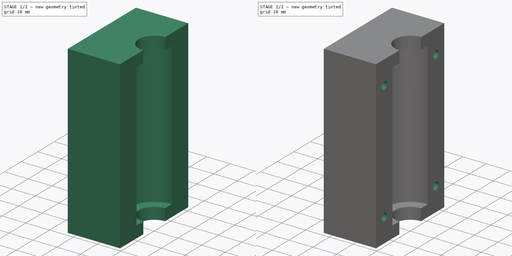
[diagram: build sequence overview — one tinted view per stage of 2, left to right]
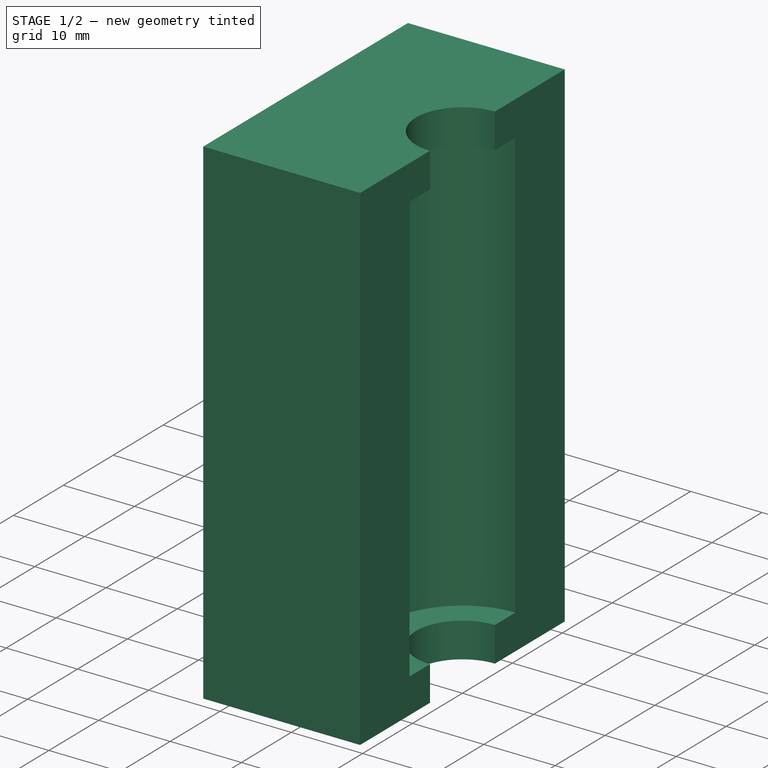
[diagram: stage 1 of 2 — iso view after this stage's code; geometry added in this stage tinted green]
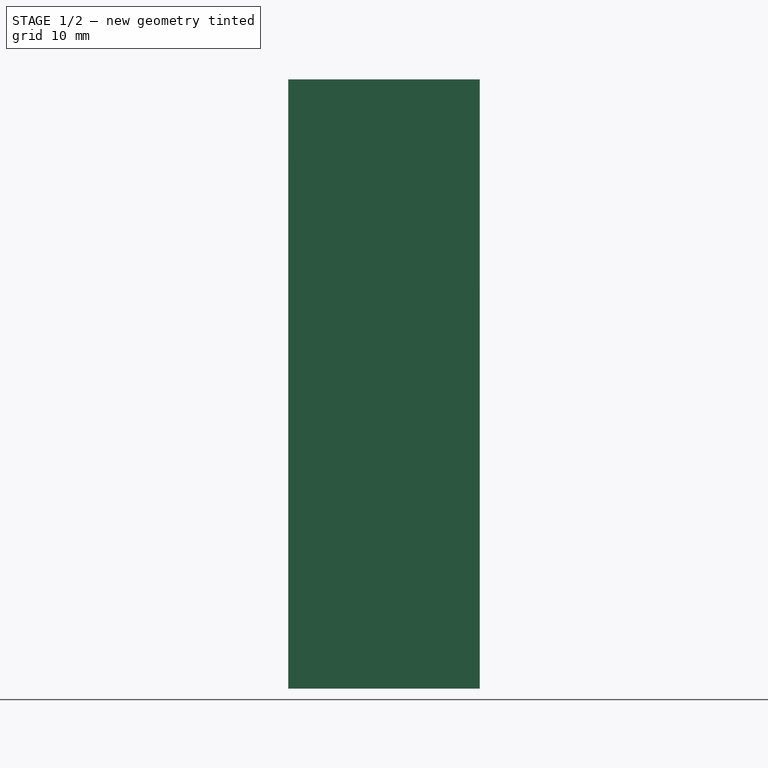
[diagram: stage 1 of 2 — front view after this stage's code; geometry added in this stage tinted green]
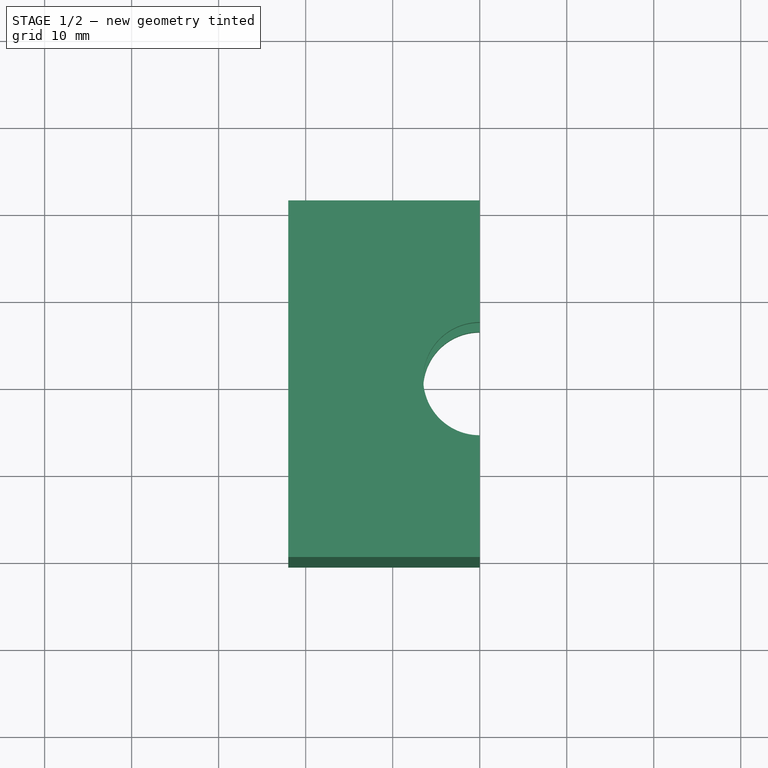
[diagram: stage 1 of 2 — top view after this stage's code; geometry added in this stage tinted green]
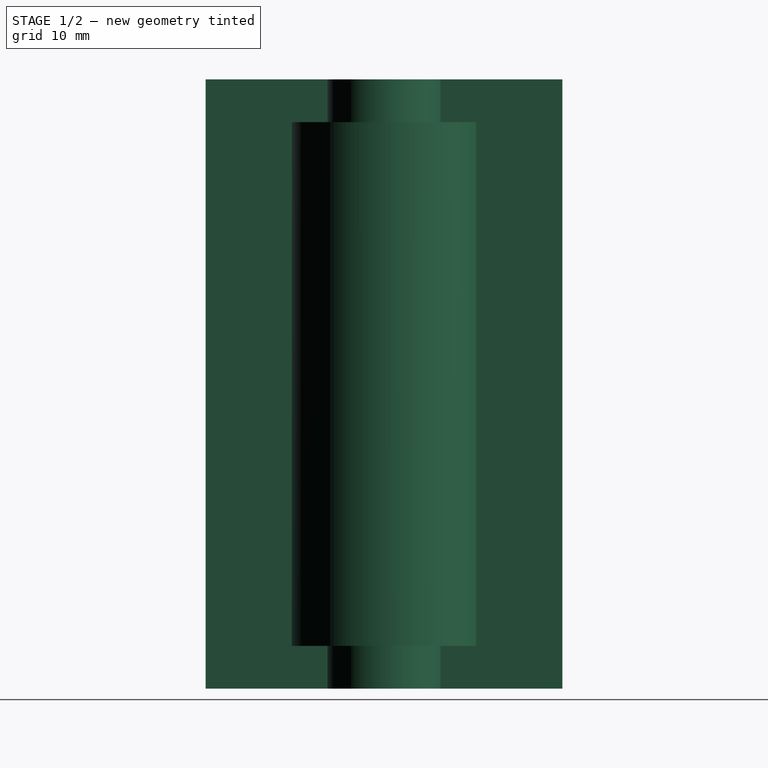
[diagram: stage 1 of 2 — right view after this stage's code; geometry added in this stage tinted green]
FCSTD DOCUMENT  (FreeCAD 0.19R20209 (Git))
Label: Z-Axel-Bearing_030
License: Creative Commons Attribution
LicenseURL: http://creativecommons.org/licenses/by/4.0/
objects: Sketcher::SketchObject×4, PartDesign::Pocket×3, PartDesign::Pad×1, PartDesign::Body×1
note: 13 computed .brp shape members not serialized (recipe doc carries the construction recipe); baked Part::Feature solids carry a one-line shape summary decoded from their .brp

FEATURE [Sketcher::SketchObject] Sketch
  MapMode = 5
  Support = -> [XY_Plane]
  expr: Constraints[12] = 21 / 2 + 10
  sketch-geometry (6):
    g0: ArcOfCircle CenterX=0 CenterY=0 CenterZ=0 NormalX=0 NormalY=0 NormalZ=1 AngleXU=0 Radius=6.5 StartAngle=1.5708 EndAngle=4.71239
    g1: LineSegment StartX=-22 StartY=20.5 StartZ=0 EndX=-22 EndY=-20.5 EndZ=0
    g2: LineSegment StartX=-22 StartY=20.5 StartZ=0 EndX=0 EndY=20.5 EndZ=0
    g3: LineSegment StartX=0 StartY=20.5 StartZ=0 EndX=0 EndY=6.5 EndZ=0
    g4: LineSegment StartX=0 StartY=-20.5 StartZ=0 EndX=-22 EndY=-20.5 EndZ=0
    g5: LineSegment StartX=-1.2e-15 StartY=-6.5 StartZ=0 EndX=0 EndY=-20.5 EndZ=0
  constraints (17):
    c: Coincident(g0,g-1)
    c: Diameter(g0) = 13
    c: Vertical(g1)
    c: DistanceX(g1,g0) = 22
    c: Coincident(g1,g2)
    c: Horizontal(g2)
    c: Coincident(g2,g3)
    c: Vertical(g3)
    c: Coincident(g5,g4)
    c: Horizontal(g4)
    c: Coincident(g4,g1)
    c: PointOnObject(g2,g-2)
    c: DistanceY(g5,g0) = 20.5
    c: Tangent(g3,g5)
    c: Coincident(g0,g3)
    c: Coincident(g0,g5)
    c: DistanceY(g1,g1) = 41
FEATURE [PartDesign::Pad] Pad
  Length = 70
  Length2 = 100
  Midplane = true
  Profile = -> Sketch
  Refine = true
  Type = 0
FEATURE [Sketcher::SketchObject] Sketch001
  MapMode = 5
  Support = -> [XY_Plane]
  sketch-geometry (1):
    g0: Circle CenterX=0 CenterY=0 CenterZ=0 NormalX=0 NormalY=0 NormalZ=1 AngleXU=0 Radius=10.6
  constraints (2):
    c: Diameter(g0) = 21.2
    c: Coincident(g0,g-1)
FEATURE [PartDesign::Pocket] Pocket
  BaseFeature = -> Pad
  Length = 60.2
  Length2 = 100
  Midplane = true
  Profile = -> Sketch001
  Refine = true
  Type = 0
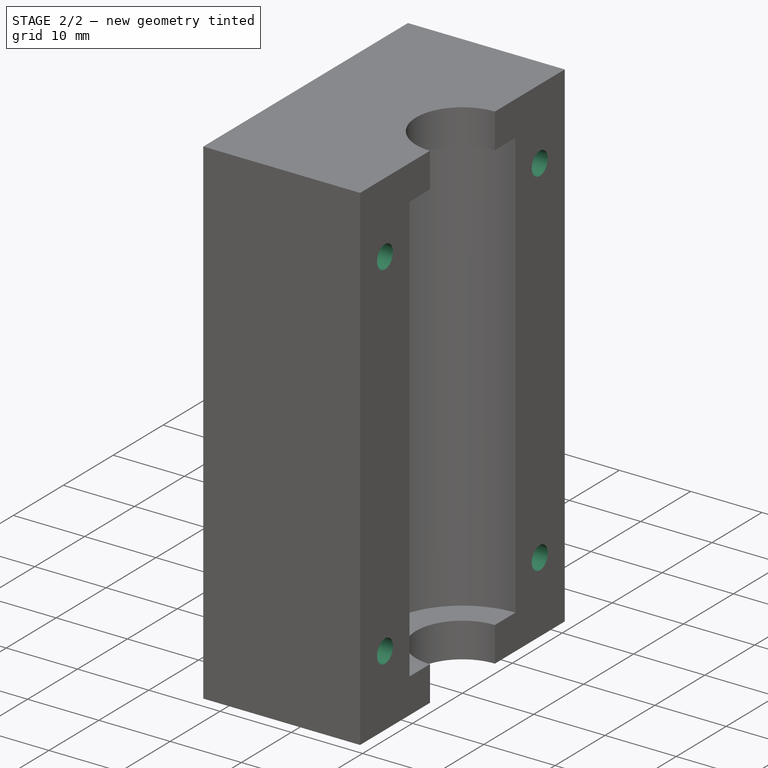
[diagram: stage 2 of 2 — iso view after this stage's code; geometry added in this stage tinted green]
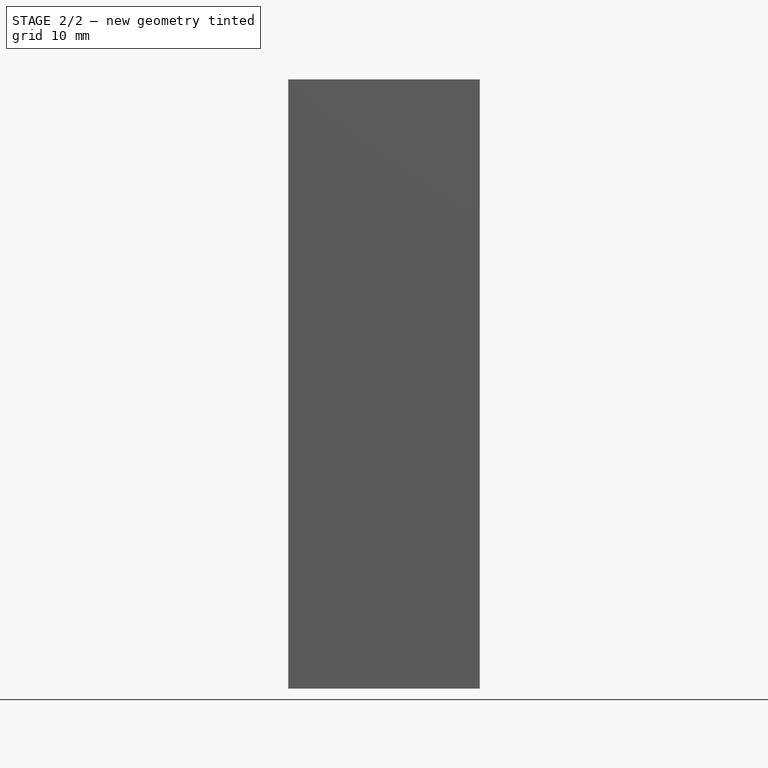
[diagram: stage 2 of 2 — front view after this stage's code; geometry added in this stage tinted green]
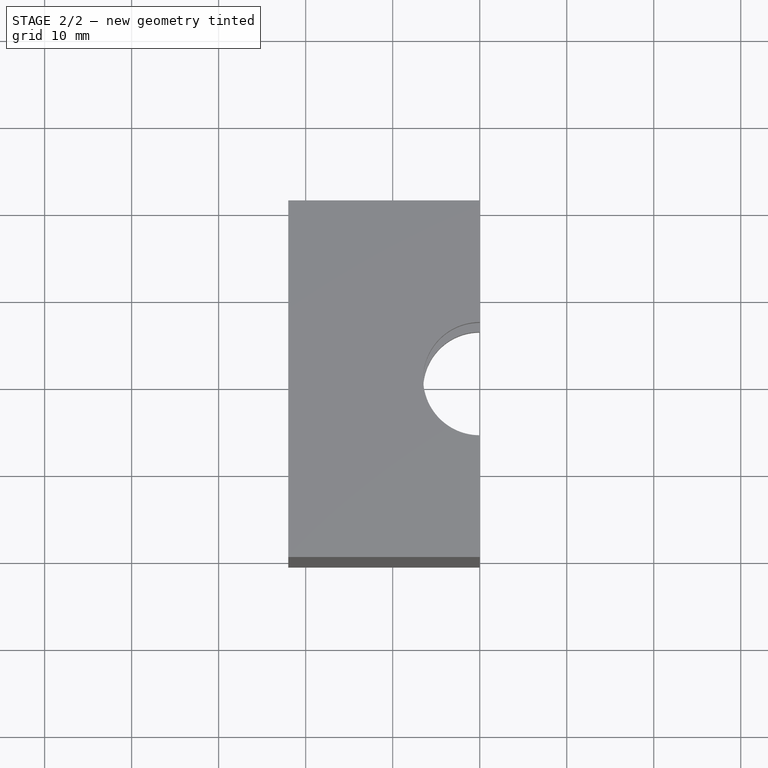
[diagram: stage 2 of 2 — top view after this stage's code; geometry added in this stage tinted green]
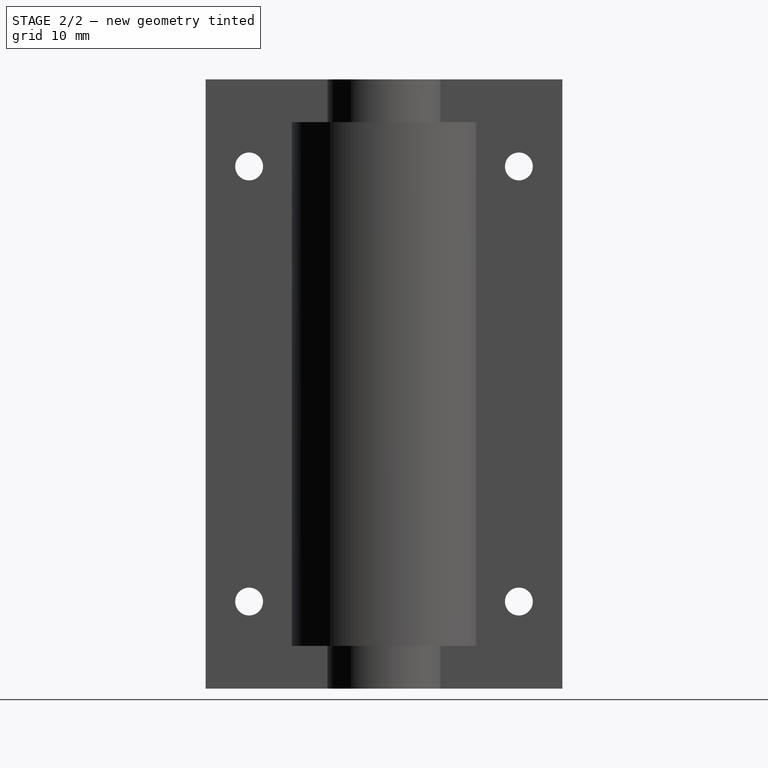
[diagram: stage 2 of 2 — right view after this stage's code; geometry added in this stage tinted green]
FEATURE [Sketcher::SketchObject] Sketch002
  ExternalGeometry = -> [Pad]
  MapMode = 5
  Placement = pos=(0,0,0) rot=(0.57735,0.57735,0.57735;2.0944rad)
  Support = -> [YZ_Plane]
  expr: Constraints[9] = 21 / 2 + 5
  sketch-geometry (4):
    g0: Circle CenterX=-15.5 CenterY=25 CenterZ=0 NormalX=0 NormalY=0 NormalZ=1 AngleXU=0 Radius=1.6
    g1: Circle CenterX=-15.5 CenterY=-25 CenterZ=0 NormalX=0 NormalY=0 NormalZ=1 AngleXU=0 Radius=1.6
    g2: Circle CenterX=15.5 CenterY=25 CenterZ=0 NormalX=0 NormalY=0 NormalZ=1 AngleXU=0 Radius=1.6
    g3: Circle CenterX=15.5 CenterY=-25 CenterZ=0 NormalX=0 NormalY=0 NormalZ=1 AngleXU=0 Radius=1.6
  constraints (11):
    c: Equal(g0,g1)
    c: Equal(g1,g3)
    c: Equal(g3,g2)
    c: Horizontal(g0,g2)
    c: Horizontal(g1,g3)
    c: Vertical(g1,g0)
    c: Vertical(g3,g2)
    c: Symmetric(g3,g0,g-1)
    c: Diameter(g0) = 3.2
    c: DistanceX(g0,g-1) = 15.5
    c: DistanceY(g3,g2) = 50
FEATURE [PartDesign::Pocket] Pocket001
  BaseFeature = -> Pocket
  Length = 5
  Length2 = 100
  Profile = -> Sketch002
  Refine = true
  Type = 1
FEATURE [Sketcher::SketchObject] Sketch003
  ExternalGeometry = -> [Pocket001]
  MapMode = 5
  Placement = pos=(-22,0,0) rot=(0.57735,-0.57735,-0.57735;2.0944rad)
  Support = -> [Pocket001]
  sketch-geometry (28):
    g0: LineSegment StartX=-12.75 StartY=23.4123 StartZ=0 EndX=-12.75 EndY=26.5877 EndZ=0
    g1: LineSegment StartX=-12.75 StartY=26.5877 StartZ=0 EndX=-15.5 EndY=28.1754 EndZ=0
    g2: LineSegment StartX=-15.5 StartY=28.1754 StartZ=0 EndX=-18.25 EndY=26.5877 EndZ=0
    g3: LineSegment StartX=-18.25 StartY=26.5877 StartZ=0 EndX=-18.25 EndY=23.4123 EndZ=0
    g4: LineSegment StartX=-18.25 StartY=23.4123 StartZ=0 EndX=-15.5 EndY=21.8246 EndZ=0
    g5: LineSegment StartX=-15.5 StartY=21.8246 StartZ=0 EndX=-12.75 EndY=23.4123 EndZ=0
    g6: Circle [constr] CenterX=-15.5 CenterY=25 CenterZ=0 NormalX=0 NormalY=0 NormalZ=1 AngleXU=0 Radius=3.17543
    g7: LineSegment StartX=12.75 StartY=26.5877 StartZ=0 EndX=12.75 EndY=23.4123 EndZ=0
    g8: LineSegment StartX=12.75 StartY=23.4123 StartZ=0 EndX=15.5 EndY=21.8246 EndZ=0
    g9: LineSegment StartX=15.5 StartY=21.8246 StartZ=0 EndX=18.25 EndY=23.4123 EndZ=0
    g10: LineSegment StartX=18.25 StartY=23.4123 StartZ=0 EndX=18.25 EndY=26.5877 EndZ=0
    g11: LineSegment StartX=18.25 StartY=26.5877 StartZ=0 EndX=15.5 EndY=28.1754 EndZ=0
    g12: LineSegment StartX=15.5 StartY=28.1754 StartZ=0 EndX=12.75 EndY=26.5877 EndZ=0
    g13: Circle [constr] CenterX=15.5 CenterY=25 CenterZ=0 NormalX=0 NormalY=0 NormalZ=1 AngleXU=0 Radius=3.17543
    g14: LineSegment StartX=-18.25 StartY=-23.4123 StartZ=0 EndX=-18.25 EndY=-26.5877 EndZ=0
    g15: LineSegment StartX=-18.25 StartY=-26.5877 StartZ=0 EndX=-15.5 EndY=-28.1754 EndZ=0
    g16: LineSegment StartX=-15.5 StartY=-28.1754 StartZ=0 EndX=-12.75 EndY=-26.5877 EndZ=0
    g17: LineSegment StartX=-12.75 StartY=-26.5877 StartZ=0 EndX=-12.75 EndY=-23.4123 EndZ=0
    g18: LineSegment StartX=-12.75 StartY=-23.4123 StartZ=0 EndX=-15.5 EndY=-21.8246 EndZ=0
    g19: LineSegment StartX=-15.5 StartY=-21.8246 StartZ=0 EndX=-18.25 EndY=-23.4123 EndZ=0
    g20: Circle [constr] CenterX=-15.5 CenterY=-25 CenterZ=0 NormalX=0 NormalY=0 NormalZ=1 AngleXU=0 Radius=3.17543
    g21: LineSegment StartX=12.75 StartY=-23.4123 StartZ=0 EndX=12.75 EndY=-26.5877 EndZ=0
    g22: LineSegment StartX=12.75 StartY=-26.5877 StartZ=0 EndX=15.5 EndY=-28.1754 EndZ=0
    g23: LineSegment StartX=15.5 StartY=-28.1754 StartZ=0 EndX=18.25 EndY=-26.5877 EndZ=0
    g24: LineSegment StartX=18.25 StartY=-26.5877 StartZ=0 EndX=18.25 EndY=-23.4123 EndZ=0
    g25: LineSegment StartX=18.25 StartY=-23.4123 StartZ=0 EndX=15.5 EndY=-21.8246 EndZ=0
    g26: LineSegment StartX=15.5 StartY=-21.8246 StartZ=0 EndX=12.75 EndY=-23.4123 EndZ=0
    g27: Circle [constr] CenterX=15.5 CenterY=-25 CenterZ=0 NormalX=0 NormalY=0 NormalZ=1 AngleXU=0 Radius=3.17543
  constraints (64):
    c: Coincident(g0,g1)
    c: Coincident(g1,g2)
    c: Coincident(g2,g3)
    c: Coincident(g3,g4)
    c: Coincident(g4,g5)
    c: Coincident(g5,g0)
    c: Equal(g0, g1-g5) x5
    c: PointOnObject(g0,g6)
    c: PointOnObject(g1,g6)
    c: PointOnObject(g2,g6)
    c: PointOnObject(g3,g6)
    c: PointOnObject(g4,g6)
    c: PointOnObject(g5,g6)
    c: Coincident(g7,g8)
    c: Coincident(g8,g9)
    c: Coincident(g9,g10)
    c: Coincident(g10,g11)
    c: Coincident(g11,g12)
    c: Coincident(g12,g7)
    c: Equal(g7, g8-g12) x5
    c: PointOnObject(g7,g13)
    c: PointOnObject(g8,g13)
    c: PointOnObject(g9,g13)
    c: PointOnObject(g10,g13)
    c: PointOnObject(g11,g13)
    c: PointOnObject(g12,g13)
    c: Coincident(g14,g15)
    c: Coincident(g15,g16)
    c: Coincident(g16,g17)
    c: Coincident(g17,g18)
    c: Coincident(g18,g19)
    c: Coincident(g19,g14)
    c: Equal(g14, g15-g19) x5
    c: PointOnObject(g14,g20)
    c: PointOnObject(g15,g20)
    c: PointOnObject(g16,g20)
    c: PointOnObject(g17,g20)
    c: PointOnObject(g18,g20)
    c: PointOnObject(g19,g20)
    c: Coincident(g21,g22)
    c: Coincident(g22,g23)
    c: Coincident(g23,g24)
    c: Coincident(g24,g25)
    c: Coincident(g25,g26)
    c: Coincident(g26,g21)
    c: Equal(g21, g22-g26) x5
    c: PointOnObject(g21,g27)
    c: PointOnObject(g22,g27)
    c: PointOnObject(g23,g27)
    c: PointOnObject(g24,g27)
    c: PointOnObject(g25,g27)
    c: PointOnObject(g26,g27)
    c: Equal(g20,g6)
    c: Equal(g6,g13)
    c: Equal(g13,g27)
    c: Vertical(g6,g1)
    c: Vertical(g20,g15)
    c: Vertical(g13,g8)
    c: Vertical(g27,g22)
    c: Distance(g2,g0) = 5.5
    c: Coincident(g13,g-4)
    c: Coincident(g6,g-3)
    c: Coincident(g20,g-6)
    c: Coincident(g27,g-5)
FEATURE [PartDesign::Pocket] Pocket002
  BaseFeature = -> Pocket001
  Length = 5
  Length2 = 100
  Profile = -> Sketch003
  Refine = true
  Type = 0
FEATURE [PartDesign::Body] Body
  Group = -> [Sketch,Pad,Sketch001,Pocket,Sketch002,Pocket001,Sketch003,Pocket002]
  Origin = -> Origin
  Tip = -> Pocket002
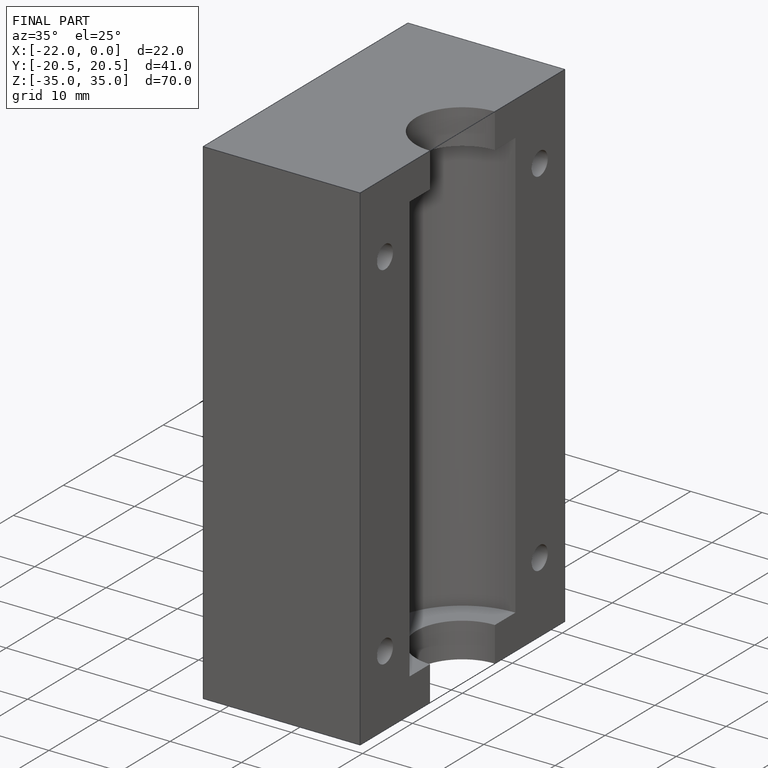
[diagram: finished part — iso view with bounding-box wireframe]
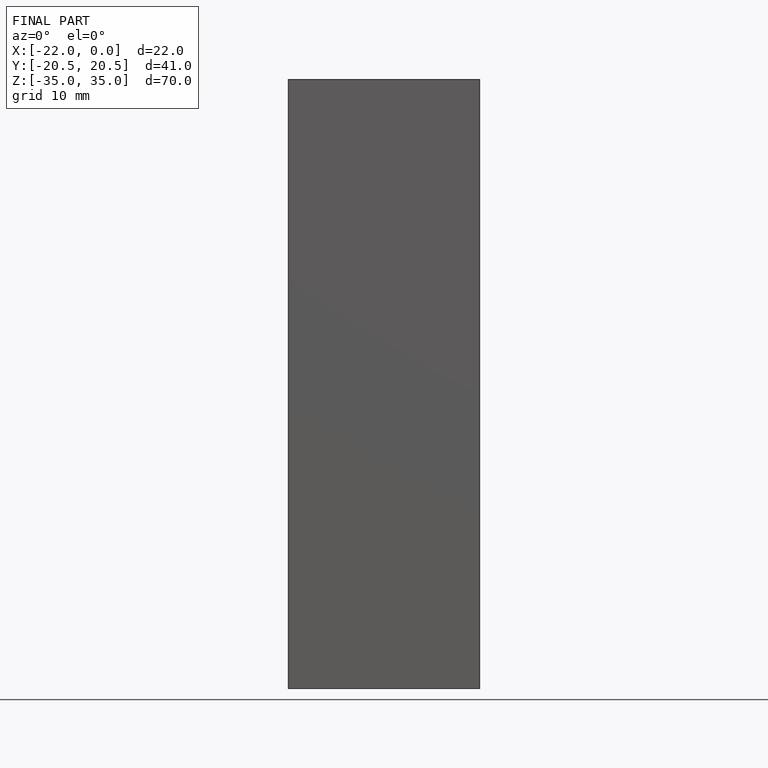
[diagram: finished part — front view with bounding-box wireframe]
